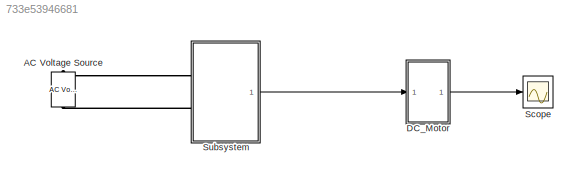
MODEL slx_733e53946681
KIND model
CONFIG AbsTol = auto
CONFIG EnableMultiTasking = on
CONFIG FixedStep = auto
CONFIG MaxStep = 1e-4
CONFIG MinStep = auto
CONFIG RelTol = 1e-3
CONFIG SampleTimeConstraint = Unconstrained
CONFIG Solver = ode23tb
CONFIG SolverName = ode23tb
CONFIG StartTime = 0.0
CONFIG StopTime = 10
BLOCK [Reference] AC Voltage Source  REF=powerlib/Electrical
Sources/AC Voltage Source
  NameLocation = right
  Ports = [0, 0, 0, 0, 0, 1, 1]
  SourceBlock = powerlib/Electrical\nSources/AC Voltage Source
  SourceProductBaseCode = PS
  SourceType = AC Voltage Source
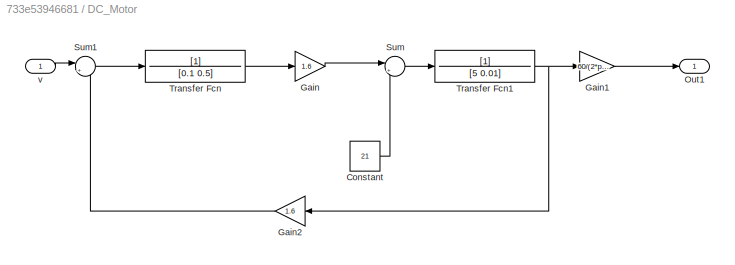
BLOCK [SubSystem] DC_Motor
  Ports = [1, 1]
  RequestExecContextInheritance = off
BLOCK [Constant] DC_Motor/Constant
  Value = 21
BLOCK [Gain] DC_Motor/Gain
  Gain = 1.6
BLOCK [Gain] DC_Motor/Gain1
  Gain = 60/(2*pi)
BLOCK [Gain] DC_Motor/Gain2
  Gain = 1.6
  NameLocation = top
BLOCK [Outport] DC_Motor/Out1
BLOCK [Sum] DC_Motor/Sum
  Inputs = |+-
  Ports = [2, 1]
BLOCK [Sum] DC_Motor/Sum1
  Inputs = |+-
  Ports = [2, 1]
BLOCK [TransferFcn] DC_Motor/Transfer Fcn
  Denominator = [0.1 0.5]
BLOCK [TransferFcn] DC_Motor/Transfer Fcn1
  Denominator = [5 0.01]
BLOCK [Inport] DC_Motor/v
BLOCK [Scope] Scope
  Floating = off
  NumInputPorts = 1
  Ports = [1]
  ScopeSpecificationString = Simulink.scopes.TimeScopeBlockCfg('CurrentConfiguration', extmgr.ConfigurationSet(extmgr.Configuration('Core','General UI',true),extmgr.Configuration('Core','Source UI',true),extmgr.Configuration('Sources','WiredSimulink',true),extmgr.Configuration('Visuals','Time Domain',true,'SerializedDisplays',{struct('MinYLimReal','-45.92851','MaxYLimReal','404.68491','YLabelReal','','MinYLimMag','0.00000','M...<+1462ch>
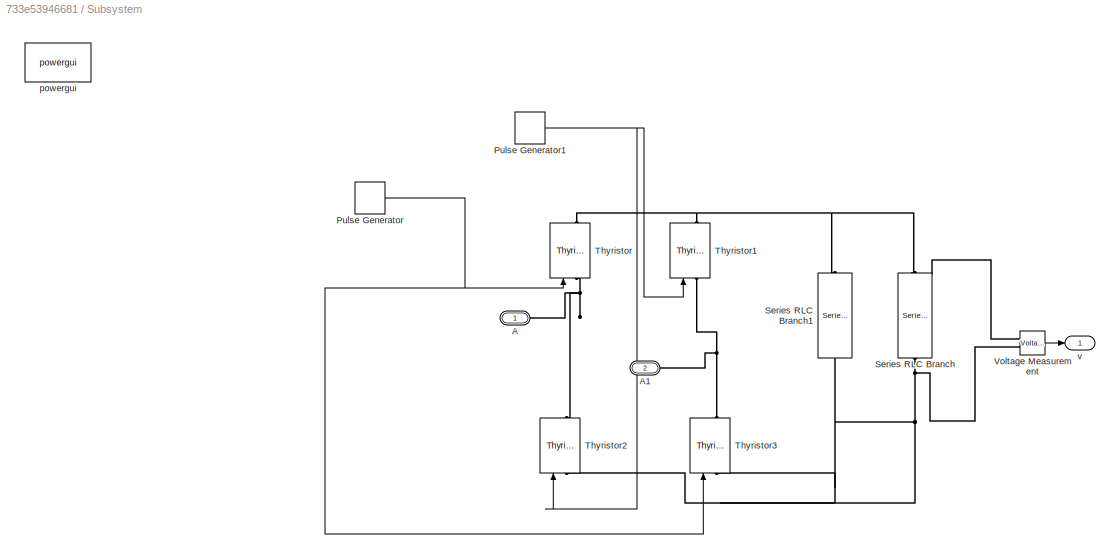
BLOCK [SubSystem] Subsystem
  Ports = [0, 1, 0, 0, 0, 2]
  RequestExecContextInheritance = off
BLOCK [PMIOPort] Subsystem/A
  Side = Left
BLOCK [PMIOPort] Subsystem/A1
  Port = 2
  Side = Left
BLOCK [DiscretePulseGenerator] Subsystem/Pulse Generator
  Amplitude = 5
  Period = 0.02
  PhaseDelay = 0*(0.02/360)
  Ports = [0, 1]
  PulseType = Time based
  PulseWidth = 5
BLOCK [DiscretePulseGenerator] Subsystem/Pulse Generator1
  Amplitude = 5
  Period = 0.02
  PhaseDelay = 180*(0.02/360)
  Ports = [0, 1]
  PulseType = Time based
  PulseWidth = 5
BLOCK [Reference] Subsystem/Series RLC Branch  REF=powerlib/Elements/Series RLC Branch
  NameLocation = left
  Ports = [0, 0, 0, 0, 0, 1, 1]
  SourceBlock = powerlib/Elements/Series RLC Branch
  SourceProductBaseCode = PS
  SourceType = Series RLC Branch
BLOCK [Reference] Subsystem/Series RLC Branch1  REF=powerlib/Elements/Series RLC Branch
  NameLocation = left
  Ports = [0, 0, 0, 0, 0, 1, 1]
  SourceBlock = powerlib/Elements/Series RLC Branch
  SourceProductBaseCode = PS
  SourceType = Series RLC Branch
BLOCK [Reference] Subsystem/Thyristor  REF=powerlib/Power
Electronics/Thyristor
  NameLocation = right
  Ports = [1, 1, 0, 0, 0, 1, 1]
  SourceBlock = powerlib/Power\nElectronics/Thyristor
  SourceProductBaseCode = PS
  SourceType = Thyristor
BLOCK [Reference] Subsystem/Thyristor1  REF=powerlib/Power
Electronics/Thyristor
  NameLocation = right
  Ports = [1, 1, 0, 0, 0, 1, 1]
  SourceBlock = powerlib/Power\nElectronics/Thyristor
  SourceProductBaseCode = PS
  SourceType = Thyristor
BLOCK [Reference] Subsystem/Thyristor2  REF=powerlib/Power
Electronics/Thyristor
  NameLocation = right
  Ports = [1, 1, 0, 0, 0, 1, 1]
  SourceBlock = powerlib/Power\nElectronics/Thyristor
  SourceProductBaseCode = PS
  SourceType = Thyristor
BLOCK [Reference] Subsystem/Thyristor3  REF=powerlib/Power
Electronics/Thyristor
  NameLocation = right
  Ports = [1, 1, 0, 0, 0, 1, 1]
  SourceBlock = powerlib/Power\nElectronics/Thyristor
  SourceProductBaseCode = PS
  SourceType = Thyristor
BLOCK [Reference] Subsystem/Voltage Measurement  REF=powerlib/Measurements/Voltage Measurement
  Ports = [0, 1, 0, 0, 0, 2]
  SourceBlock = powerlib/Measurements/Voltage Measurement
  SourceProductBaseCode = PS
  SourceType = Voltage Measurement
  UserDataPersistent = on
BLOCK [Reference] Subsystem/powergui  REF=powerlib/powergui
  Ports = []
  Priority = 1
  SourceBlock = powerlib/powergui
  SourceProductBaseCode = PS
  SourceType = PSB option menu block
BLOCK [Outport] Subsystem/v
LINE DC_Motor/Constant:1 -> DC_Motor/Sum:2
LINE DC_Motor/Gain1:1 -> DC_Motor/Out1:1
LINE DC_Motor/Gain2:1 -> DC_Motor/Sum1:2
LINE DC_Motor/Gain:1 -> DC_Motor/Sum:1
LINE DC_Motor/Sum1:1 -> DC_Motor/Transfer Fcn:1
LINE DC_Motor/Sum:1 -> DC_Motor/Transfer Fcn1:1
NET DC_Motor/Transfer Fcn1:1 -> DC_Motor/Gain1:1, DC_Motor/Gain2:1
LINE DC_Motor/Transfer Fcn:1 -> DC_Motor/Gain:1
LINE DC_Motor/v:1 -> DC_Motor/Sum1:1
LINE DC_Motor:1 -> Scope:1
NET Subsystem/Pulse Generator1:1 -> Subsystem/Thyristor1:1, Subsystem/Thyristor2:1
NET Subsystem/Pulse Generator:1 -> Subsystem/Thyristor3:1, Subsystem/Thyristor:1
LINE Subsystem/Voltage Measurement:1 -> Subsystem/v:1
LINE Subsystem:1 -> DC_Motor:1
PLINE AC Voltage Source:LConn1 -- Subsystem:LConn2
PLINE AC Voltage Source:RConn1 -- Subsystem:LConn1
PNET net1: Subsystem/A1:RConn1 -- Subsystem/Thyristor1:LConn1 -- Subsystem/Thyristor3:RConn1
PNET net2: Subsystem/A:RConn1 -- Subsystem/Thyristor2:RConn1 -- Subsystem/Thyristor:LConn1
PNET net3: Subsystem/Series RLC Branch1:LConn1 -- Subsystem/Series RLC Branch:LConn1 -- Subsystem/Thyristor1:RConn1 -- Subsystem/Thyristor:RConn1 -- Subsystem/Voltage Measurement:LConn1
PNET net4: Subsystem/Series RLC Branch1:RConn1 -- Subsystem/Series RLC Branch:RConn1 -- Subsystem/Thyristor2:LConn1 -- Subsystem/Thyristor3:LConn1 -- Subsystem/Voltage Measurement:LConn2
note: NET lines group one-source signal fan-out (src -> all destinations, sorted); 1:1 wires keep LINE; PNET lines group multi-terminal physical nets as a canonical sorted terminal list (undirected conserving connections); 2-terminal nets keep the pairwise PLINE form
